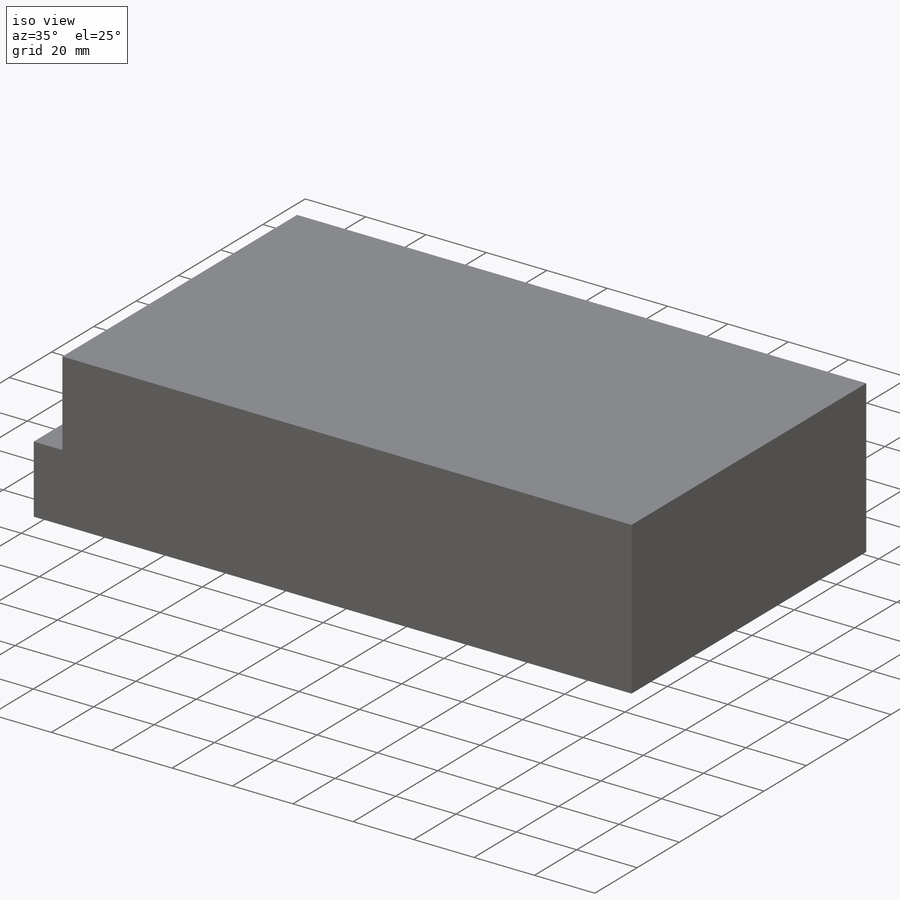
[diagram: iso view]
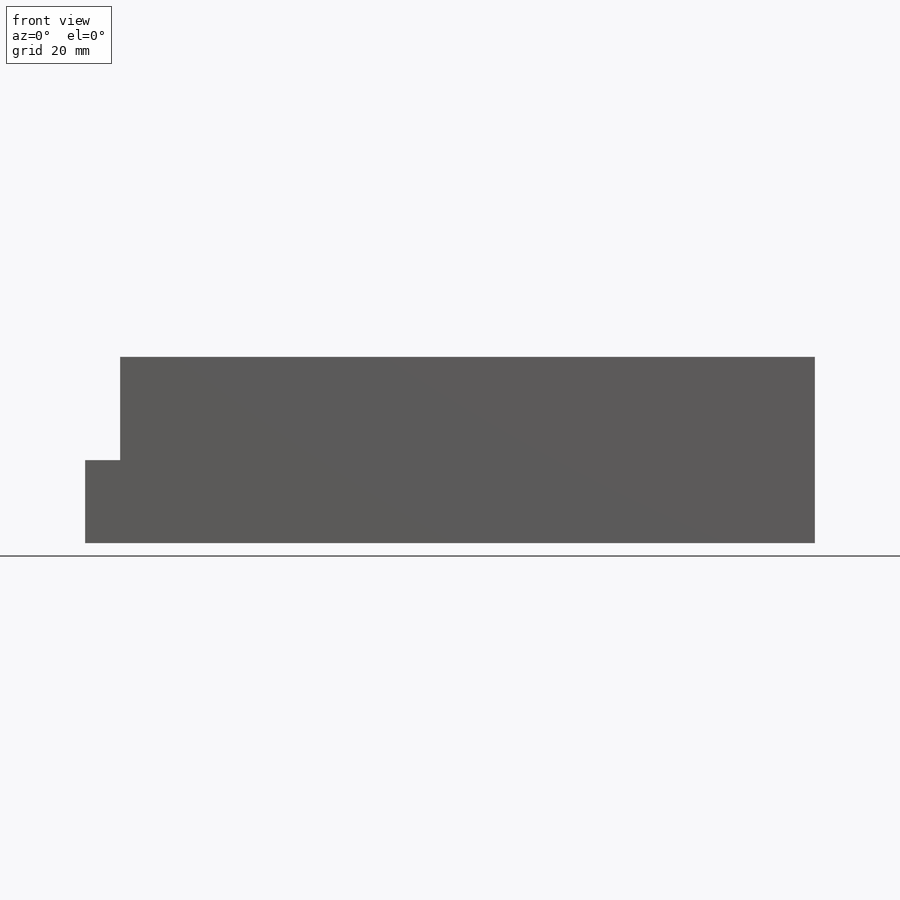
[diagram: front view]
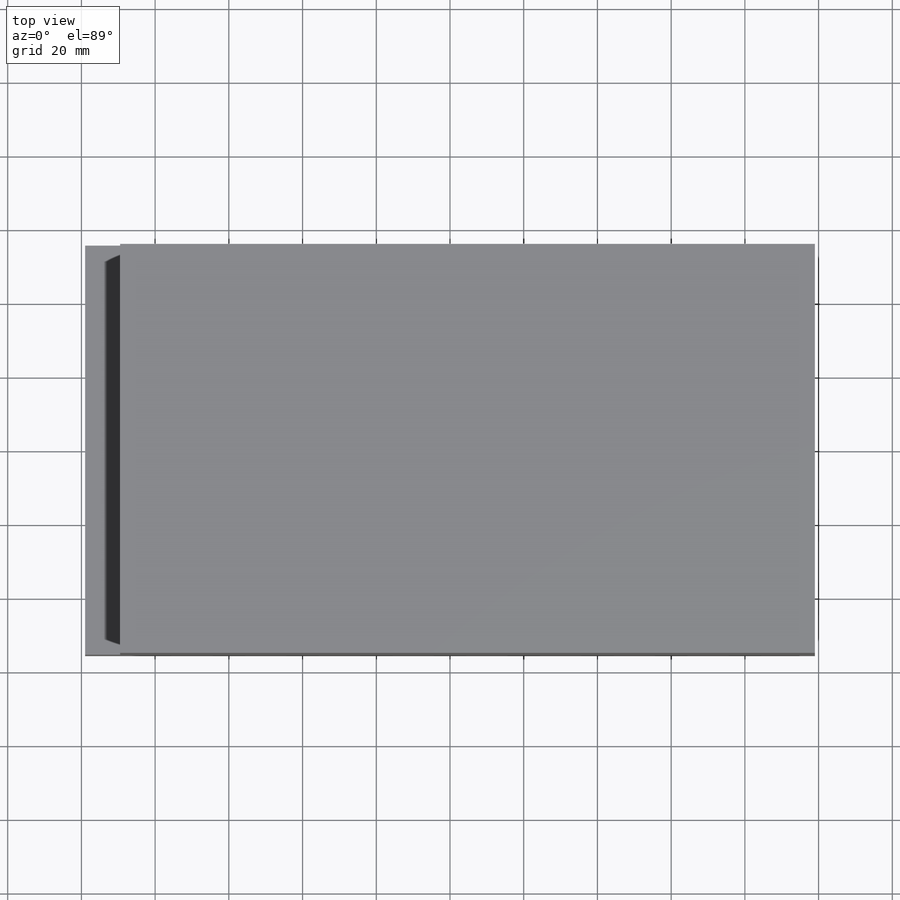
[diagram: top view]
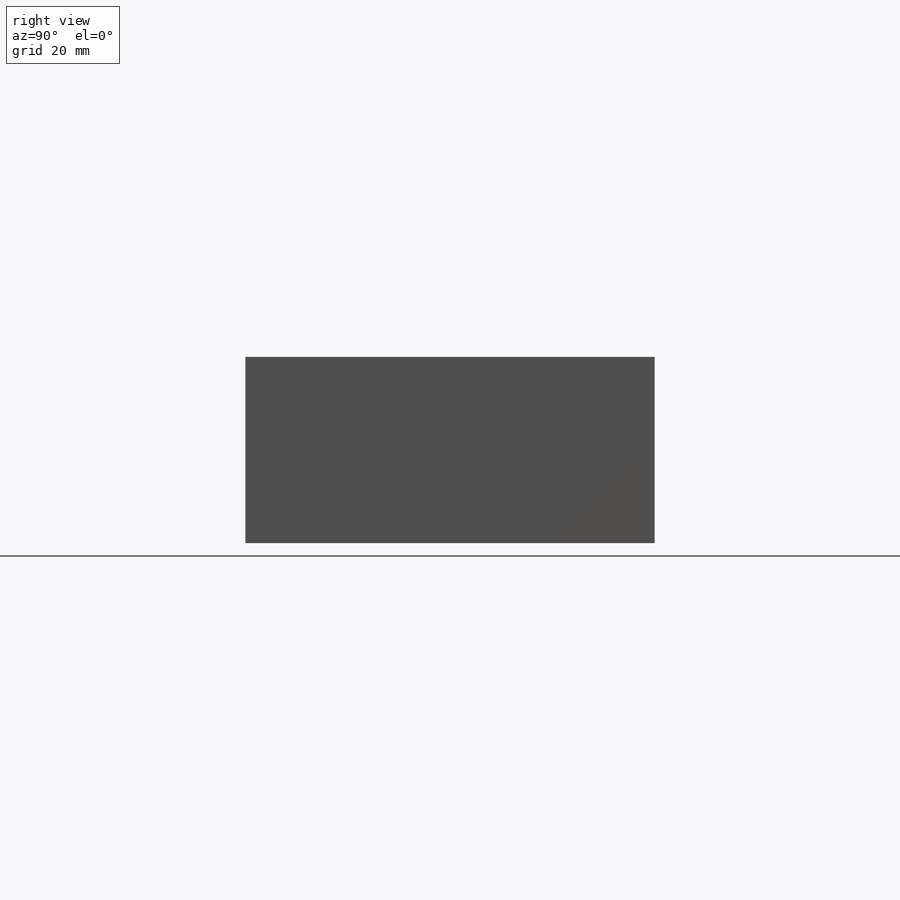
[diagram: right view]
SOLIDWORKS PART (.sldprt)
format: sldprt  version: not decoded by parser v0  size: 155,648 bytes
history: native  units: mm
features: sketch x3, cut_extrude x2, material x1, extrude x1 (+12 scaffold rows collapsed)
feature tree (19):
  scaffold x12  (default folders/planes/origin — collapsed)
  material  "Material <not specified>"
  sketch  "Sketch1"  dims[D1=198.0mm D2=111.0mm]
  extrude  "Boss-Extrude1"  Depth=50.5mm
  sketch  "Sketch2"  dims[D1=28.0mm D2=9.5mm]
  cut_extrude  "Cut-Extrude1"  Depth=147.5mm
  sketch  "Sketch4"  dims[c1.D3=3.0mm c1.D1=~139.031802mm c2.D1=~179.070504deg c3.D1=12.0mm c3.D2=10.0mm c3.D4=16.0mm c3.D5=126.0mm c3.D6=60.0mm]
  cut_extrude  "Cut-Extrude2"  Depth=3mm
decode coverage: 6 of 6 modeling features carry decoded parameters
note: ~ marks probable driven/reference dimensions
note: suppression state not decoded; provenance and decode notes live in map.json
